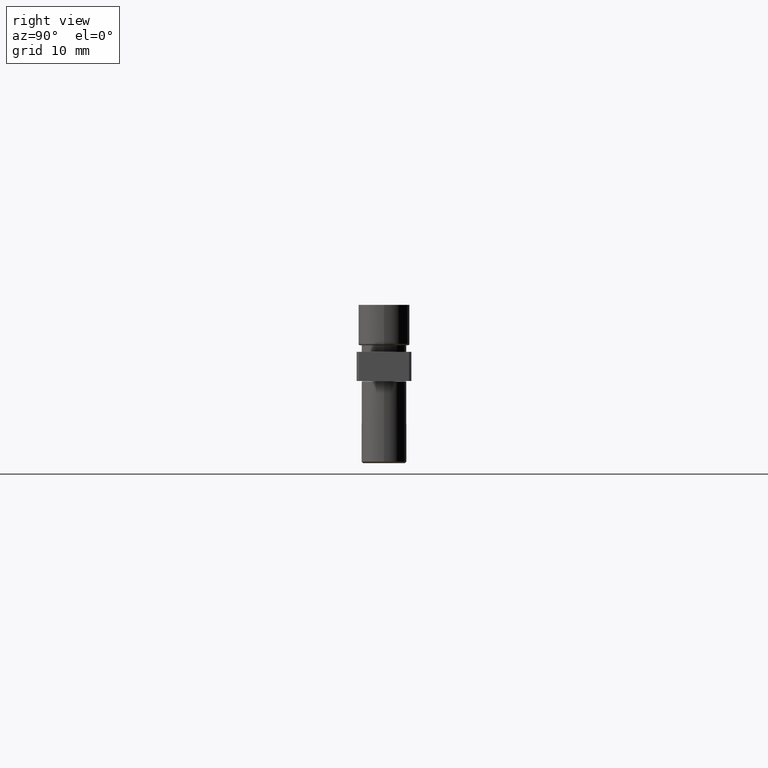
[diagram: clean part render]
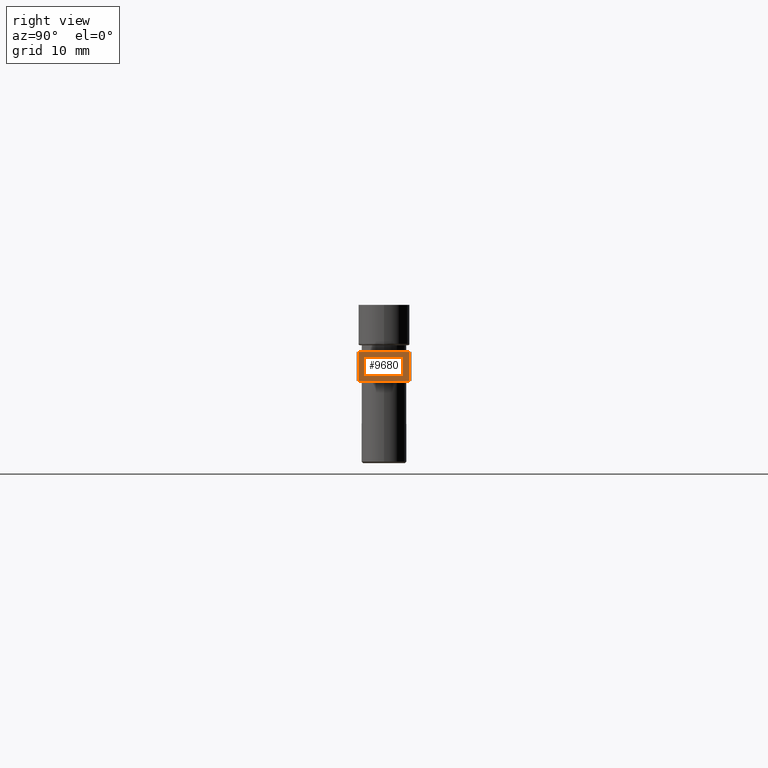
[diagram: same view with one face highlighted and labeled with its STEP entity id]
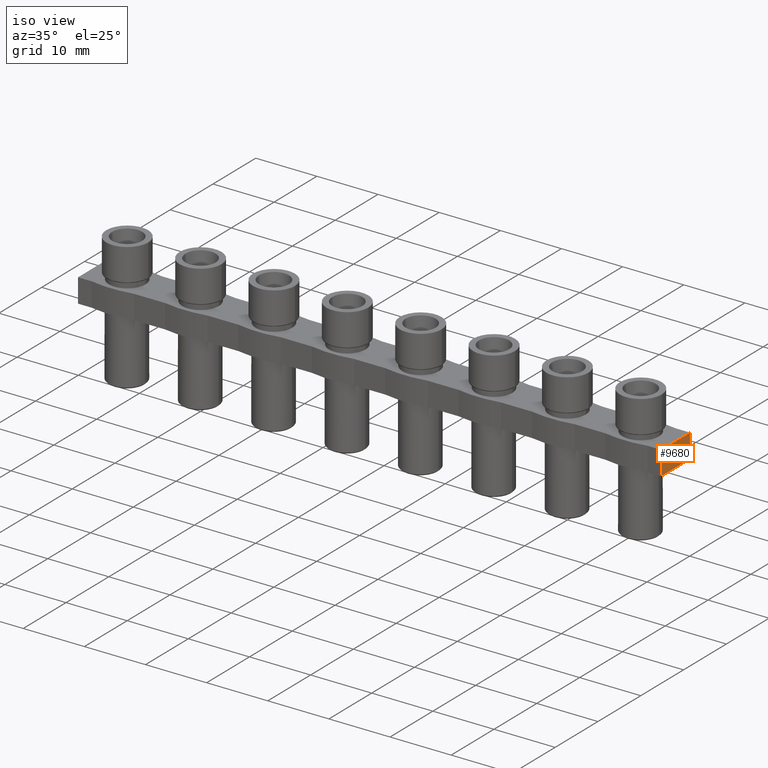
[diagram: same view with one face highlighted and labeled with its STEP entity id]
A machine part, right view. The second image highlights one B-rep face of the part: STEP entity #9680.
A second angle (iso view) of the same face is appended — the face is thin or edge-on in the first view.
In plain terms, the highlighted planar face has unit normal (-1, 0, 0).
Its self-contained STEP definition (entity closure, byte-faithful):
#217 = VECTOR ( 'NONE', #11075, 1000.000000000000000 ) ;
#231 = VECTOR ( 'NONE', #11067, 1000.000000000000000 ) ;
#325 = VECTOR ( 'NONE', #11440, 1000.000000000000000 ) ;
#429 = AXIS2_PLACEMENT_3D ( 'NONE', #11920, #11931, #11905 ) ;
#658 = VECTOR ( 'NONE', #8584, 1000.000000000000000 ) ;
#1796 = EDGE_CURVE ( 'NONE', #2760, #2806, #8569, .T. ) ;
#2760 = VERTEX_POINT ( 'NONE', #4677 ) ;
#2806 = VERTEX_POINT ( 'NONE', #4743 ) ;
#2831 = VERTEX_POINT ( 'NONE', #4717 ) ;
#2863 = VERTEX_POINT ( 'NONE', #4823 ) ;
#3854 = EDGE_LOOP ( 'NONE', ( #5527, #5518, #5508, #5494 ) ) ;
#4677 = CARTESIAN_POINT ( 'NONE',  ( 17.69999999999921800, -3.349999999999913900, -0.9000000000000014700 ) ) ;
#4717 = CARTESIAN_POINT ( 'NONE',  ( 17.69999999999921800, 3.350000000000085400, -4.800000000000001600 ) ) ;
#4743 = CARTESIAN_POINT ( 'NONE',  ( 17.69999999999921800, 3.350000000000087100, -0.9000000000000014700 ) ) ;
#4823 = CARTESIAN_POINT ( 'NONE',  ( 17.69999999999921800, -3.349999999999912600, -4.800000000000001600 ) ) ;
#5494 = ORIENTED_EDGE ( 'NONE', *, *, #9521, .T. ) ;
#5508 = ORIENTED_EDGE ( 'NONE', *, *, #1796, .F. ) ;
#5518 = ORIENTED_EDGE ( 'NONE', *, *, #9612, .F. ) ;
#5527 = ORIENTED_EDGE ( 'NONE', *, *, #9520, .F. ) ;
#8569 = LINE ( 'NONE', #8570, #658 ) ;
#8570 = CARTESIAN_POINT ( 'NONE',  ( 17.69999999999921800, -3.349999999999924100, -0.9000000000000014700 ) ) ;
#8584 = DIRECTION ( 'NONE',  ( 0.0000000000000000000, 1.000000000000000000, 0.0000000000000000000 ) ) ;
#9520 = EDGE_CURVE ( 'NONE', #2831, #2863, #11080, .T. ) ;
#9521 = EDGE_CURVE ( 'NONE', #2760, #2863, #11099, .T. ) ;
#9612 = EDGE_CURVE ( 'NONE', #2806, #2831, #11418, .T. ) ;
#9680 = ADVANCED_FACE ( 'NONE', ( #11921 ), #11894, .F. ) ;
#11067 = DIRECTION ( 'NONE',  ( 0.0000000000000000000, -1.000000000000000000, 0.0000000000000000000 ) ) ;
#11072 = CARTESIAN_POINT ( 'NONE',  ( 17.69999999999921800, -3.349999999999914400, -15.81000000015502300 ) ) ;
#11075 = DIRECTION ( 'NONE',  ( 0.0000000000000000000, 0.0000000000000000000, -1.000000000000000000 ) ) ;
#11080 = LINE ( 'NONE', #11086, #231 ) ;
#11086 = CARTESIAN_POINT ( 'NONE',  ( 17.69999999999921800, 3.350000000000086700, -4.800000000000002500 ) ) ;
#11099 = LINE ( 'NONE', #11072, #217 ) ;
#11418 = LINE ( 'NONE', #11465, #325 ) ;
#11440 = DIRECTION ( 'NONE',  ( 0.0000000000000000000, 0.0000000000000000000, -1.000000000000000000 ) ) ;
#11465 = CARTESIAN_POINT ( 'NONE',  ( 17.69999999999921800, 3.350000000000087100, -0.9000000000000014700 ) ) ;
#11894 = PLANE ( 'NONE',  #429 ) ;
#11905 = DIRECTION ( 'NONE',  ( 0.0000000000000000000, 0.0000000000000000000, 1.000000000000000000 ) ) ;
#11920 = CARTESIAN_POINT ( 'NONE',  ( 17.69999999999921800, 3.350000000000086700, -15.81000000015502300 ) ) ;
#11921 = FACE_OUTER_BOUND ( 'NONE', #3854, .T. ) ;
#11931 = DIRECTION ( 'NONE',  ( -1.000000000000000000, 0.0000000000000000000, 0.0000000000000000000 ) ) ;